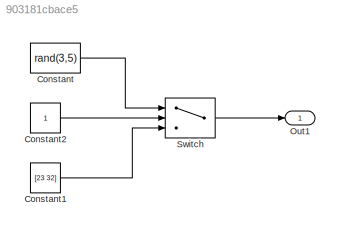
MODEL slx_903181cbace5
KIND model
BLOCK [Constant] Constant
  Value = rand(3,5)
BLOCK [Constant] Constant1
  Value = [23 32]
BLOCK [Constant] Constant2
BLOCK [Outport] Out1
  IconDisplay = Port number
BLOCK [Switch] Switch
  AllowDiffInputSizes = on
  InputSameDT = off
  SaturateOnIntegerOverflow = off
  Threshold = 2
LINE Constant1:1 -> Switch:3
LINE Constant2:1 -> Switch:2
LINE Constant:1 -> Switch:1
LINE Switch:1 -> Out1:1
